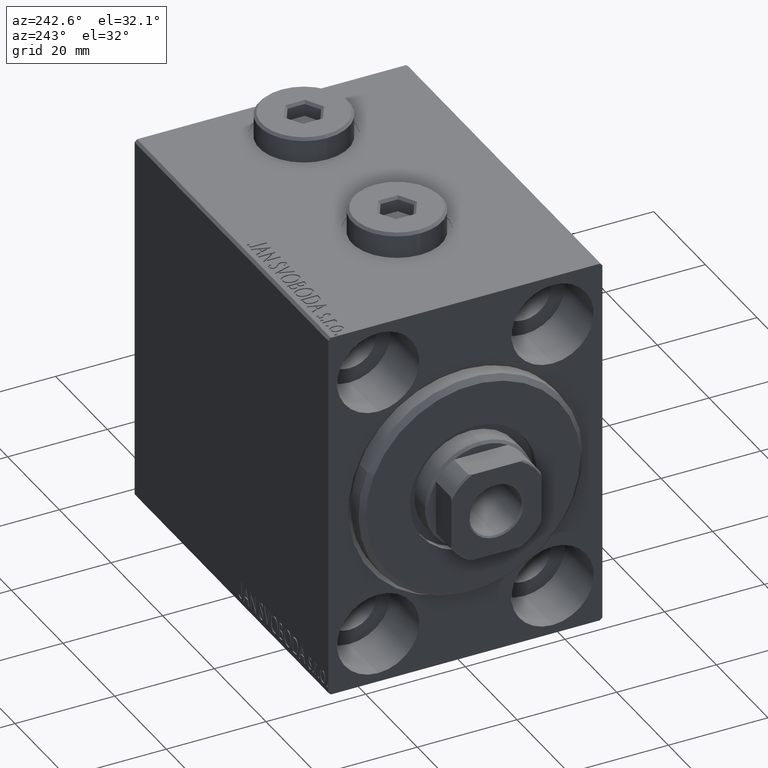
[diagram: clean part render]
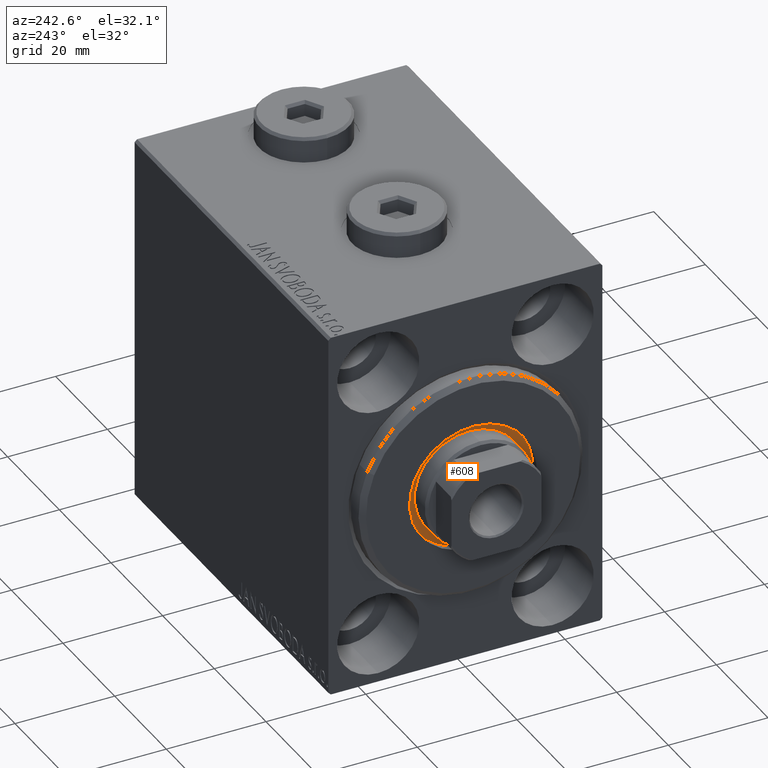
[diagram: same view with one face highlighted and labeled with its STEP entity id]
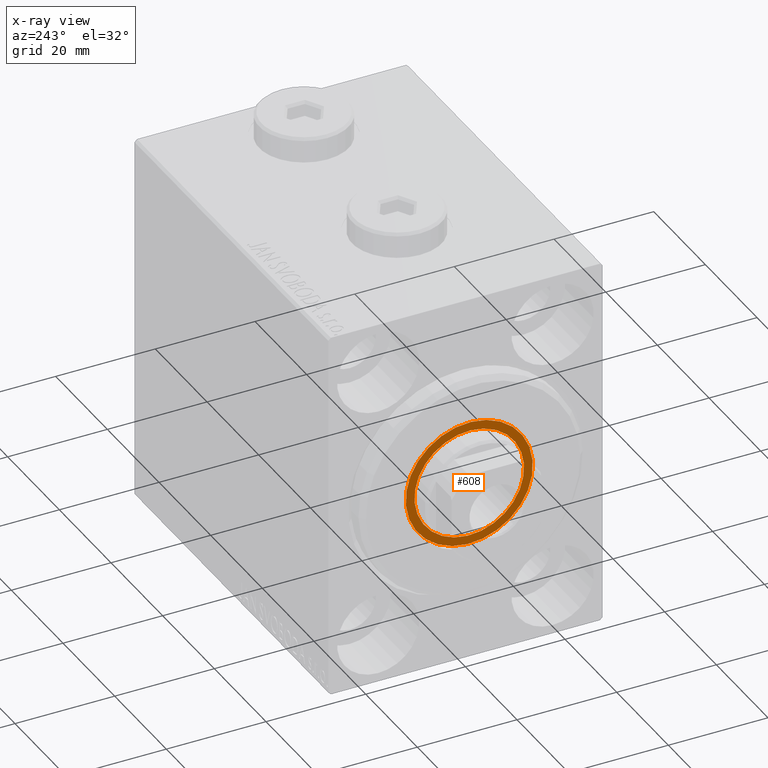
[diagram: x-ray of the same camera — body ghosted, the highlighted face saturated]
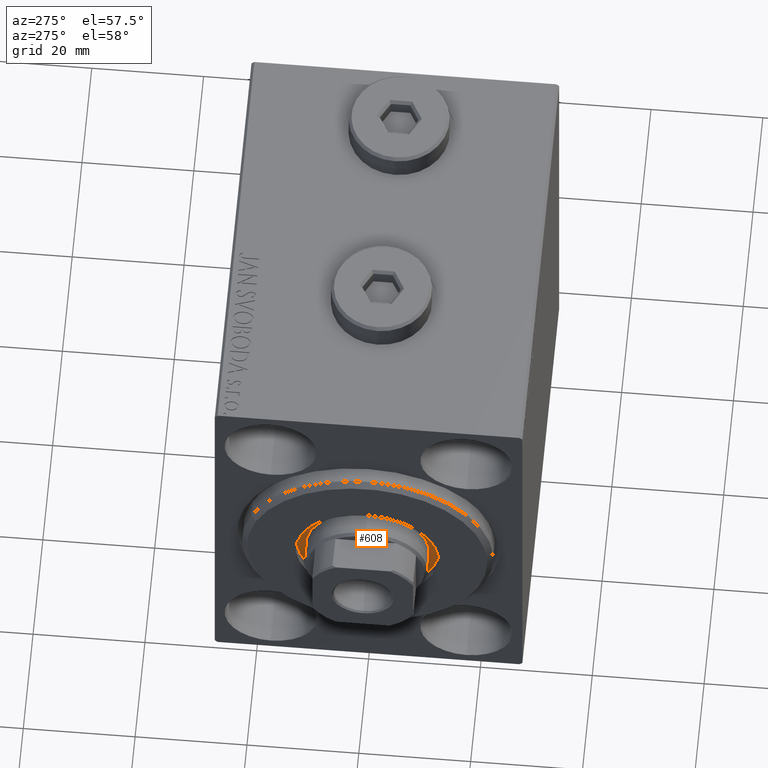
[diagram: same view with one face highlighted and labeled with its STEP entity id]
A machine part, auxiliary view. The second image highlights one B-rep face of the part: STEP entity #608.
The next image is the same camera in x-ray: the body ghosted, the highlighted face saturated — about 0% of this face is hidden behind the body in this view.
A second angle (auxiliary view) of the same face is appended — the face is thin or edge-on in the first view.
In plain terms, the highlighted planar face has unit normal (-1, 0, 0).
Its self-contained STEP definition (entity closure, byte-faithful):
#608 = ADVANCED_FACE ( 'NONE', ( #27818, #10931 ), #38367, .T. ) ;
#1057 = CARTESIAN_POINT ( 'NONE',  ( 1.500000000000000000, 0.000000000000000000, 0.000000000000000000 ) ) ;
#1843 = DIRECTION ( 'NONE',  ( 1.000000000000000000, 0.000000000000000000, 0.000000000000000000 ) ) ;
#1917 = CIRCLE ( 'NONE', #22955, 12.75000000000000000 ) ;
#3989 = AXIS2_PLACEMENT_3D ( 'NONE', #30749, #13823, #27531 ) ;
#4088 = DIRECTION ( 'NONE',  ( 1.000000000000000000, 0.000000000000000000, 0.000000000000000000 ) ) ;
#6656 = ORIENTED_EDGE ( 'NONE', *, *, #23813, .T. ) ;
#6755 = EDGE_CURVE ( 'NONE', #19503, #16259, #38917, .T. ) ;
#10931 = FACE_OUTER_BOUND ( 'NONE', #29825, .T. ) ;
#13823 = DIRECTION ( 'NONE',  ( 1.000000000000000000, 0.000000000000000000, 0.000000000000000000 ) ) ;
#16259 = VERTEX_POINT ( 'NONE', #34624 ) ;
#16643 = CARTESIAN_POINT ( 'NONE',  ( 1.500000000000000000, 1.561424668912874914E-15, -12.75000000000000000 ) ) ;
#16917 = AXIS2_PLACEMENT_3D ( 'NONE', #38176, #42080, #27857 ) ;
#18023 = CARTESIAN_POINT ( 'NONE',  ( 1.500000000000000000, 0.000000000000000000, 0.000000000000000000 ) ) ;
#19503 = VERTEX_POINT ( 'NONE', #42005 ) ;
#19526 = ORIENTED_EDGE ( 'NONE', *, *, #37328, .F. ) ;
#20736 = CARTESIAN_POINT ( 'NONE',  ( 1.500000000000000000, 0.000000000000000000, 12.75000000000000000 ) ) ;
#22955 = AXIS2_PLACEMENT_3D ( 'NONE', #1057, #42657, #28913 ) ;
#23267 = VERTEX_POINT ( 'NONE', #20736 ) ;
#23813 = EDGE_CURVE ( 'NONE', #23267, #35369, #35084, .T. ) ;
#24410 = CIRCLE ( 'NONE', #3989, 11.00000000000000000 ) ;
#27531 = DIRECTION ( 'NONE',  ( 0.000000000000000000, 0.000000000000000000, -1.000000000000000000 ) ) ;
#27818 = FACE_BOUND ( 'NONE', #38344, .T. ) ;
#27857 = DIRECTION ( 'NONE',  ( 0.000000000000000000, 0.000000000000000000, -1.000000000000000000 ) ) ;
#28253 = ORIENTED_EDGE ( 'NONE', *, *, #40342, .T. ) ;
#28913 = DIRECTION ( 'NONE',  ( 0.000000000000000000, 0.000000000000000000, -1.000000000000000000 ) ) ;
#29825 = EDGE_LOOP ( 'NONE', ( #6656, #28253 ) ) ;
#30749 = CARTESIAN_POINT ( 'NONE',  ( 1.499999999999999556, 0.000000000000000000, 0.000000000000000000 ) ) ;
#34624 = CARTESIAN_POINT ( 'NONE',  ( 1.499999999999999556, 1.347111479062088405E-15, 11.00000000000000000 ) ) ;
#35084 = CIRCLE ( 'NONE', #16917, 12.75000000000000000 ) ;
#35139 = DIRECTION ( 'NONE',  ( 0.000000000000000000, 0.000000000000000000, -1.000000000000000000 ) ) ;
#35241 = AXIS2_PLACEMENT_3D ( 'NONE', #43450, #1843, #37015 ) ;
#35369 = VERTEX_POINT ( 'NONE', #16643 ) ;
#37015 = DIRECTION ( 'NONE',  ( 0.000000000000000000, 0.000000000000000000, -1.000000000000000000 ) ) ;
#37328 = EDGE_CURVE ( 'NONE', #16259, #19503, #24410, .T. ) ;
#38032 = AXIS2_PLACEMENT_3D ( 'NONE', #18023, #4088, #35139 ) ;
#38176 = CARTESIAN_POINT ( 'NONE',  ( 1.500000000000000000, 0.000000000000000000, 0.000000000000000000 ) ) ;
#38344 = EDGE_LOOP ( 'NONE', ( #42766, #19526 ) ) ;
#38367 = PLANE ( 'NONE',  #38032 ) ;
#38917 = CIRCLE ( 'NONE', #35241, 11.00000000000000000 ) ;
#40342 = EDGE_CURVE ( 'NONE', #35369, #23267, #1917, .T. ) ;
#42005 = CARTESIAN_POINT ( 'NONE',  ( 1.499999999999999556, 0.000000000000000000, -11.00000000000000000 ) ) ;
#42080 = DIRECTION ( 'NONE',  ( 1.000000000000000000, 0.000000000000000000, 0.000000000000000000 ) ) ;
#42657 = DIRECTION ( 'NONE',  ( 1.000000000000000000, 0.000000000000000000, 0.000000000000000000 ) ) ;
#42766 = ORIENTED_EDGE ( 'NONE', *, *, #6755, .F. ) ;
#43450 = CARTESIAN_POINT ( 'NONE',  ( 1.499999999999999556, 0.000000000000000000, 0.000000000000000000 ) ) ;